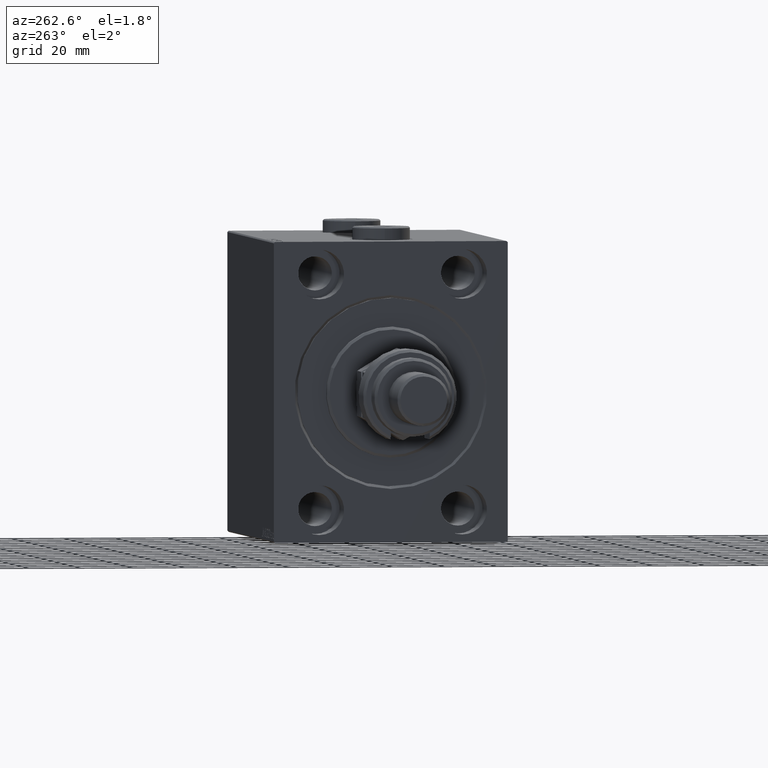
[diagram: clean part render]
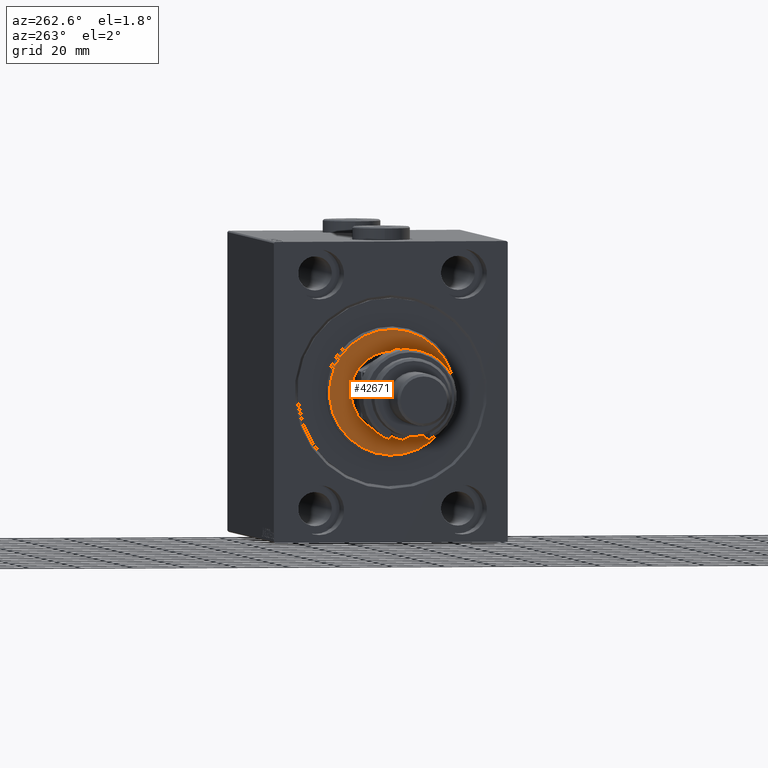
[diagram: same view with one face highlighted and labeled with its STEP entity id]
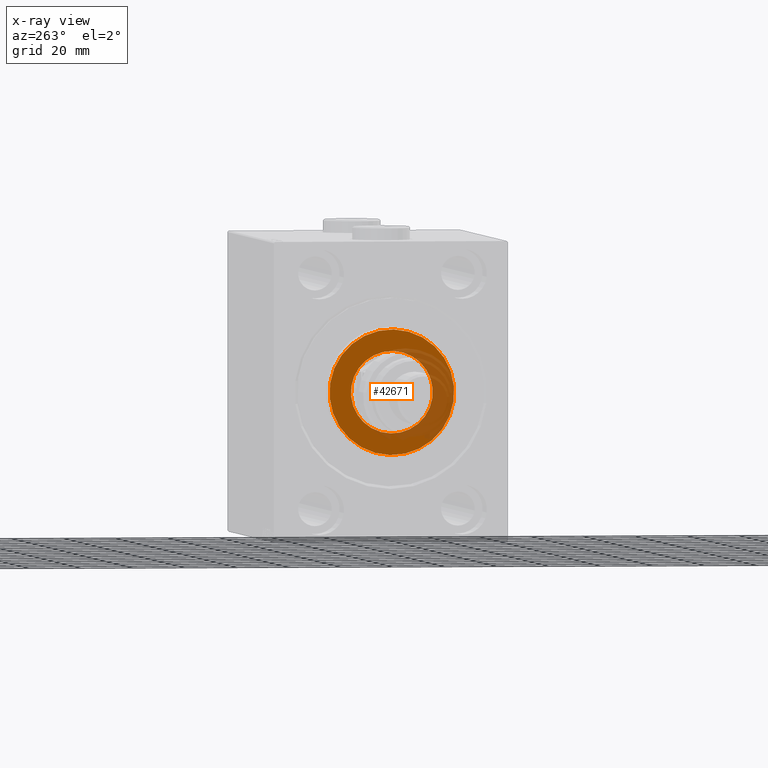
[diagram: x-ray of the same camera — body ghosted, the highlighted face saturated]
A machine part, auxiliary view. The second image highlights one B-rep face of the part: STEP entity #42671.
The next image is the same camera in x-ray: the body ghosted, the highlighted face saturated — about 32% of this face is hidden behind the body in this view.
In plain terms, the highlighted planar face has unit normal (-1, 0, 0).
Its self-contained STEP definition (entity closure, byte-faithful):
#3552 = CARTESIAN_POINT ( 'NONE',  ( 3.000000000000000000, 0.000000000000000000, 0.000000000000000000 ) ) ;
#5480 = ORIENTED_EDGE ( 'NONE', *, *, #33369, .T. ) ;
#6392 = DIRECTION ( 'NONE',  ( 0.000000000000000000, 0.000000000000000000, -1.000000000000000000 ) ) ;
#6932 = DIRECTION ( 'NONE',  ( 1.000000000000000000, -0.000000000000000000, 0.000000000000000000 ) ) ;
#7624 = AXIS2_PLACEMENT_3D ( 'NONE', #45851, #43167, #6392 ) ;
#8377 = CARTESIAN_POINT ( 'NONE',  ( 3.000000000000000000, 1.928818708657080950E-15, -15.75000000000000000 ) ) ;
#9938 = CIRCLE ( 'NONE', #11494, 24.00000000000000711 ) ;
#10583 = DIRECTION ( 'NONE',  ( 0.000000000000000000, 0.000000000000000000, -1.000000000000000000 ) ) ;
#11229 = DIRECTION ( 'NONE',  ( 0.000000000000000000, 0.000000000000000000, -1.000000000000000000 ) ) ;
#11494 = AXIS2_PLACEMENT_3D ( 'NONE', #3552, #30060, #25931 ) ;
#12720 = DIRECTION ( 'NONE',  ( -1.000000000000000000, 0.000000000000000000, -0.000000000000000000 ) ) ;
#13222 = EDGE_LOOP ( 'NONE', ( #5480, #23083 ) ) ;
#13781 = FACE_BOUND ( 'NONE', #38846, .T. ) ;
#14008 = AXIS2_PLACEMENT_3D ( 'NONE', #43474, #6932, #10583 ) ;
#14886 = AXIS2_PLACEMENT_3D ( 'NONE', #25843, #14888, #11229 ) ;
#14888 = DIRECTION ( 'NONE',  ( 1.000000000000000000, -0.000000000000000000, 0.000000000000000000 ) ) ;
#14991 = CARTESIAN_POINT ( 'NONE',  ( 3.000000000000000000, 0.000000000000000000, 15.75000000000000000 ) ) ;
#16550 = EDGE_CURVE ( 'NONE', #46497, #42732, #35315, .T. ) ;
#20749 = CARTESIAN_POINT ( 'NONE',  ( 3.000000000000000000, 0.000000000000000000, 0.000000000000000000 ) ) ;
#23083 = ORIENTED_EDGE ( 'NONE', *, *, #47936, .T. ) ;
#23184 = ORIENTED_EDGE ( 'NONE', *, *, #34716, .T. ) ;
#25843 = CARTESIAN_POINT ( 'NONE',  ( 3.000000000000000000, 0.000000000000000000, 0.000000000000000000 ) ) ;
#25905 = FACE_OUTER_BOUND ( 'NONE', #13222, .T. ) ;
#25931 = DIRECTION ( 'NONE',  ( 0.000000000000000000, 0.000000000000000000, -1.000000000000000000 ) ) ;
#28604 = PLANE ( 'NONE',  #14008 ) ;
#30060 = DIRECTION ( 'NONE',  ( 1.000000000000000000, -0.000000000000000000, 0.000000000000000000 ) ) ;
#31732 = CIRCLE ( 'NONE', #7624, 15.75000000000000000 ) ;
#31945 = DIRECTION ( 'NONE',  ( 0.000000000000000000, 0.000000000000000000, -1.000000000000000000 ) ) ;
#32190 = AXIS2_PLACEMENT_3D ( 'NONE', #20749, #12720, #31945 ) ;
#33369 = EDGE_CURVE ( 'NONE', #38238, #35288, #9938, .T. ) ;
#34325 = CIRCLE ( 'NONE', #14886, 24.00000000000000711 ) ;
#34716 = EDGE_CURVE ( 'NONE', #42732, #46497, #31732, .T. ) ;
#35288 = VERTEX_POINT ( 'NONE', #43575 ) ;
#35315 = CIRCLE ( 'NONE', #32190, 15.75000000000000000 ) ;
#38238 = VERTEX_POINT ( 'NONE', #41075 ) ;
#38846 = EDGE_LOOP ( 'NONE', ( #47932, #23184 ) ) ;
#41075 = CARTESIAN_POINT ( 'NONE',  ( 3.000000000000000000, 0.000000000000000000, 24.00000000000000711 ) ) ;
#42671 = ADVANCED_FACE ( 'NONE', ( #25905, #13781 ), #28604, .T. ) ;
#42732 = VERTEX_POINT ( 'NONE', #8377 ) ;
#43167 = DIRECTION ( 'NONE',  ( -1.000000000000000000, 0.000000000000000000, -0.000000000000000000 ) ) ;
#43474 = CARTESIAN_POINT ( 'NONE',  ( 3.000000000000000000, 0.000000000000000000, 0.000000000000000000 ) ) ;
#43575 = CARTESIAN_POINT ( 'NONE',  ( 3.000000000000000000, 3.000384657911015469E-15, -24.00000000000000711 ) ) ;
#45851 = CARTESIAN_POINT ( 'NONE',  ( 3.000000000000000000, 0.000000000000000000, 0.000000000000000000 ) ) ;
#46497 = VERTEX_POINT ( 'NONE', #14991 ) ;
#47932 = ORIENTED_EDGE ( 'NONE', *, *, #16550, .T. ) ;
#47936 = EDGE_CURVE ( 'NONE', #35288, #38238, #34325, .T. ) ;